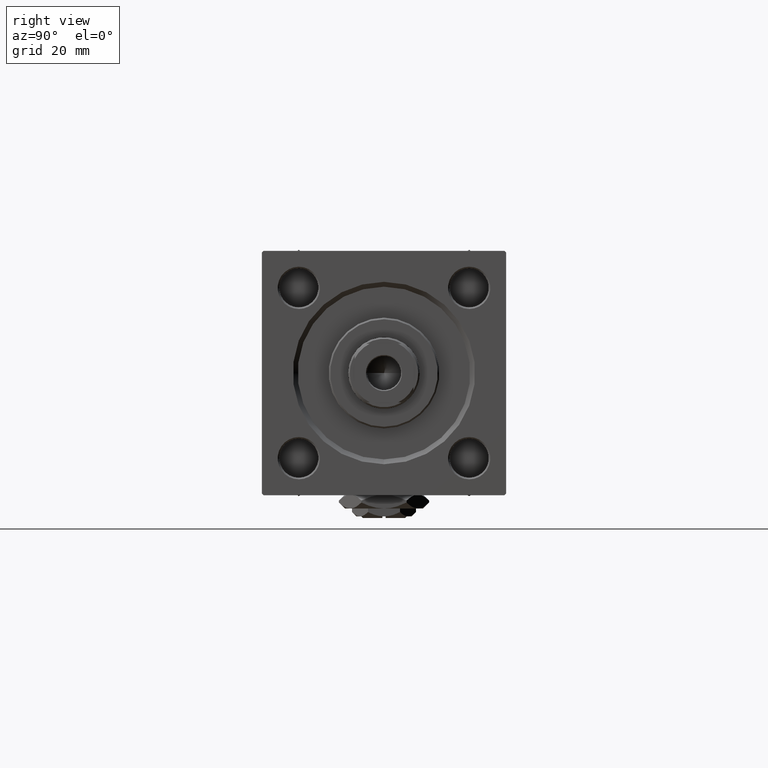
[diagram: clean part render]
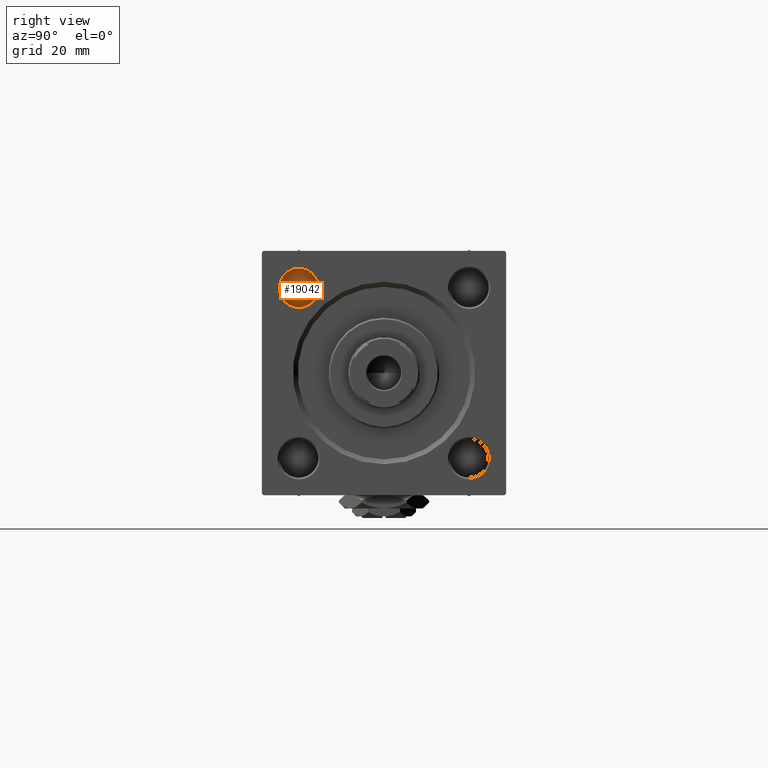
[diagram: same view with one face highlighted and labeled with its STEP entity id]
A machine part, right view. The second image highlights one B-rep face of the part: STEP entity #19042.
In plain terms, the highlighted planar face has unit normal (1, 0, 0).
Its self-contained STEP definition (entity closure, byte-faithful):
#749 = PLANE ( 'NONE',  #40718 ) ;
#1833 = DIRECTION ( 'NONE',  ( 0.000000000000000000, 0.000000000000000000, -1.000000000000000000 ) ) ;
#2710 = DIRECTION ( 'NONE',  ( 0.000000000000000000, 0.000000000000000000, -1.000000000000000000 ) ) ;
#4105 = VERTEX_POINT ( 'NONE', #45258 ) ;
#4975 = CARTESIAN_POINT ( 'NONE',  ( 129.0000000000000000, -26.14999999999999147, 26.14999999999999503 ) ) ;
#5237 = DIRECTION ( 'NONE',  ( 0.000000000000000000, 0.000000000000000000, -1.000000000000000000 ) ) ;
#5901 = CIRCLE ( 'NONE', #51431, 5.999999999999998224 ) ;
#12254 = EDGE_CURVE ( 'NONE', #31420, #4105, #5901, .T. ) ;
#13048 = CARTESIAN_POINT ( 'NONE',  ( 129.0000000000000000, -26.14999999999999147, 20.14999999999999858 ) ) ;
#17989 = CIRCLE ( 'NONE', #50038, 5.999999999999998224 ) ;
#19042 = ADVANCED_FACE ( 'NONE', ( #20819 ), #749, .T. ) ;
#20819 = FACE_OUTER_BOUND ( 'NONE', #22475, .T. ) ;
#22475 = EDGE_LOOP ( 'NONE', ( #23011, #38095 ) ) ;
#23011 = ORIENTED_EDGE ( 'NONE', *, *, #12254, .T. ) ;
#23878 = EDGE_CURVE ( 'NONE', #4105, #31420, #17989, .T. ) ;
#30444 = CARTESIAN_POINT ( 'NONE',  ( 129.0000000000000000, -26.14999999999999147, 26.14999999999999503 ) ) ;
#30951 = DIRECTION ( 'NONE',  ( 1.000000000000000000, 0.000000000000000000, 0.000000000000000000 ) ) ;
#31420 = VERTEX_POINT ( 'NONE', #13048 ) ;
#36969 = CARTESIAN_POINT ( 'NONE',  ( 129.0000000000000000, -26.14999999999999147, 26.14999999999999503 ) ) ;
#37492 = DIRECTION ( 'NONE',  ( 1.000000000000000000, 0.000000000000000000, 0.000000000000000000 ) ) ;
#38095 = ORIENTED_EDGE ( 'NONE', *, *, #23878, .T. ) ;
#40718 = AXIS2_PLACEMENT_3D ( 'NONE', #4975, #49344, #5237 ) ;
#45258 = CARTESIAN_POINT ( 'NONE',  ( 129.0000000000000000, -26.14999999999999147, 32.14999999999999858 ) ) ;
#49344 = DIRECTION ( 'NONE',  ( 1.000000000000000000, 0.000000000000000000, 0.000000000000000000 ) ) ;
#50038 = AXIS2_PLACEMENT_3D ( 'NONE', #30444, #30951, #2710 ) ;
#51431 = AXIS2_PLACEMENT_3D ( 'NONE', #36969, #37492, #1833 ) ;